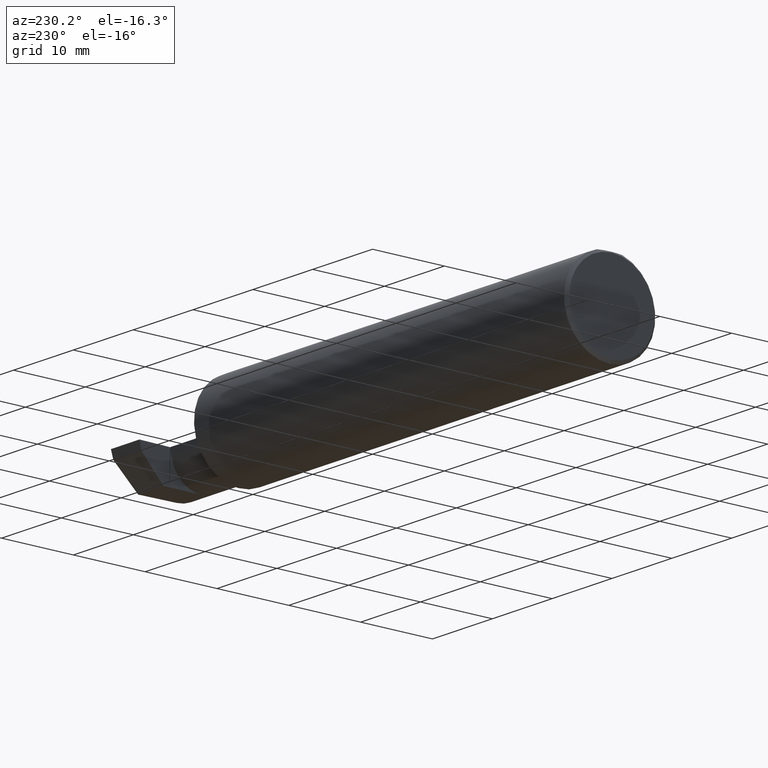
[diagram: clean part render]
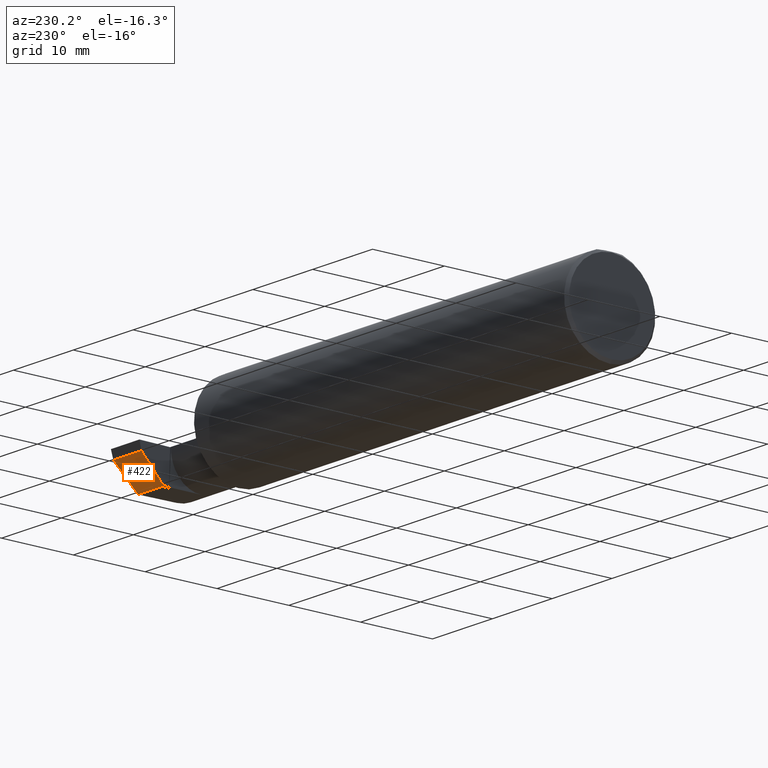
[diagram: same view with one face highlighted and labeled with its STEP entity id]
A machine part, auxiliary view. The second image highlights one B-rep face of the part: STEP entity #422.
In plain terms, the highlighted planar face has unit normal (0, -0.7071, 0.7071).
Its self-contained STEP definition (entity closure, byte-faithful):
#6 = VECTOR ( 'NONE', #484, 39.37007874015748143 ) ;
#8 = CARTESIAN_POINT ( 'NONE',  ( 2.823047045968829494, 0.1058243371481679407, -0.1749999999999999334 ) ) ;
#9 = ORIENTED_EDGE ( 'NONE', *, *, #221, .F. ) ;
#25 = VERTEX_POINT ( 'NONE', #8 ) ;
#34 = LINE ( 'NONE', #802, #6 ) ;
#43 = DIRECTION ( 'NONE',  ( 0.000000000000000000, -0.7071067811865463515, 0.7071067811865487940 ) ) ;
#44 = LINE ( 'NONE', #491, #489 ) ;
#93 = CARTESIAN_POINT ( 'NONE',  ( 2.800000000000000266, 0.2348243371481683328, -0.04599999999999999922 ) ) ;
#97 = PLANE ( 'NONE',  #556 ) ;
#98 = EDGE_CURVE ( 'NONE', #138, #426, #527, .T. ) ;
#101 = VECTOR ( 'NONE', #786, 39.37007874015748854 ) ;
#105 = VERTEX_POINT ( 'NONE', #772 ) ;
#138 = VERTEX_POINT ( 'NONE', #359 ) ;
#150 = DIRECTION ( 'NONE',  ( 1.000000000000000000, 0.000000000000000000, 0.000000000000000000 ) ) ;
#157 = LINE ( 'NONE', #535, #101 ) ;
#166 = EDGE_CURVE ( 'NONE', #105, #138, #34, .T. ) ;
#212 = DIRECTION ( 'NONE',  ( -0.04317993108637931815, -0.7064472710512013087, -0.7064472710511988662 ) ) ;
#221 = EDGE_CURVE ( 'NONE', #25, #426, #44, .T. ) ;
#281 = DIRECTION ( 'NONE',  ( 0.000000000000000000, -0.7071067811865486830, -0.7071067811865462405 ) ) ;
#286 = FACE_OUTER_BOUND ( 'NONE', #481, .T. ) ;
#295 = ORIENTED_EDGE ( 'NONE', *, *, #166, .T. ) ;
#359 = CARTESIAN_POINT ( 'NONE',  ( 2.998364291748493393, 0.2348243371481683328, -0.04599999999999999922 ) ) ;
#401 = CARTESIAN_POINT ( 'NONE',  ( 2.997994440247351289, 0.2287733644601109839, -0.05205097268805729954 ) ) ;
#413 = CARTESIAN_POINT ( 'NONE',  ( 2.990479469570817006, 0.1058243371481679129, -0.1749999999999999889 ) ) ;
#422 = ADVANCED_FACE ( 'NONE', ( #286 ), #97, .F. ) ;
#426 = VERTEX_POINT ( 'NONE', #413 ) ;
#481 = EDGE_LOOP ( 'NONE', ( #295, #585, #9, #803 ) ) ;
#484 = DIRECTION ( 'NONE',  ( 1.000000000000000000, -0.000000000000000000, -0.000000000000000000 ) ) ;
#489 = VECTOR ( 'NONE', #150, 39.37007874015748143 ) ;
#491 = CARTESIAN_POINT ( 'NONE',  ( 3.000000000000000444, 0.1058243371481678574, -0.1750000000000000167 ) ) ;
#515 = EDGE_CURVE ( 'NONE', #25, #105, #157, .T. ) ;
#527 = LINE ( 'NONE', #401, #723 ) ;
#535 = CARTESIAN_POINT ( 'NONE',  ( 2.814003339467445741, 0.2353133442654601892, -0.04551099288270814974 ) ) ;
#556 = AXIS2_PLACEMENT_3D ( 'NONE', #93, #43, #281 ) ;
#585 = ORIENTED_EDGE ( 'NONE', *, *, #98, .T. ) ;
#723 = VECTOR ( 'NONE', #212, 39.37007874015748143 ) ;
#772 = CARTESIAN_POINT ( 'NONE',  ( 2.814037492458068890, 0.2348243371481683328, -0.04599999999999999228 ) ) ;
#786 = DIRECTION ( 'NONE',  ( -0.04932528479609229327, 0.7062460676987121211, 0.7062460676987096786 ) ) ;
#802 = CARTESIAN_POINT ( 'NONE',  ( 2.800000000000000266, 0.2348243371481683328, -0.04599999999999999922 ) ) ;
#803 = ORIENTED_EDGE ( 'NONE', *, *, #515, .T. ) ;